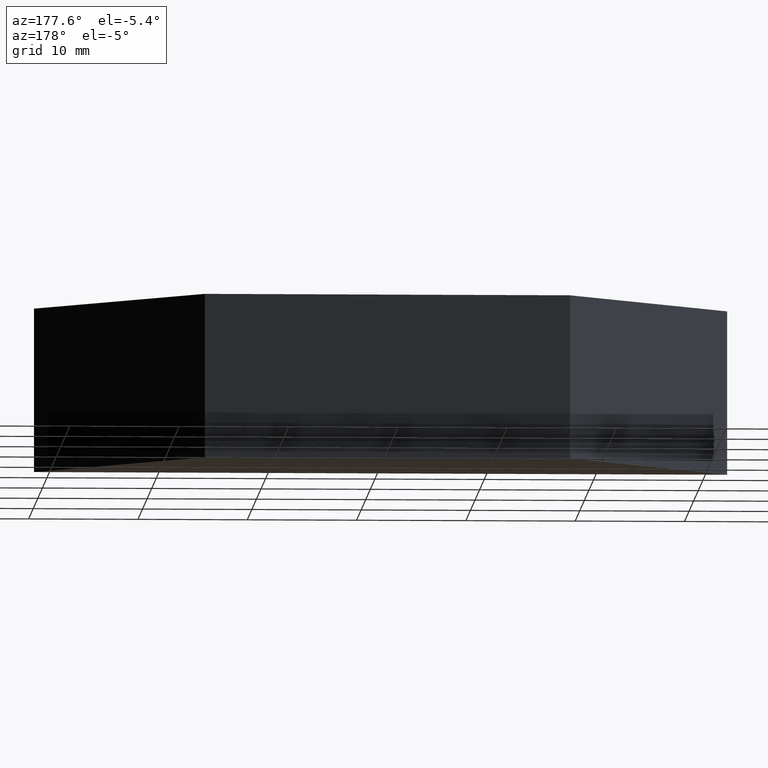
[diagram: clean part render]
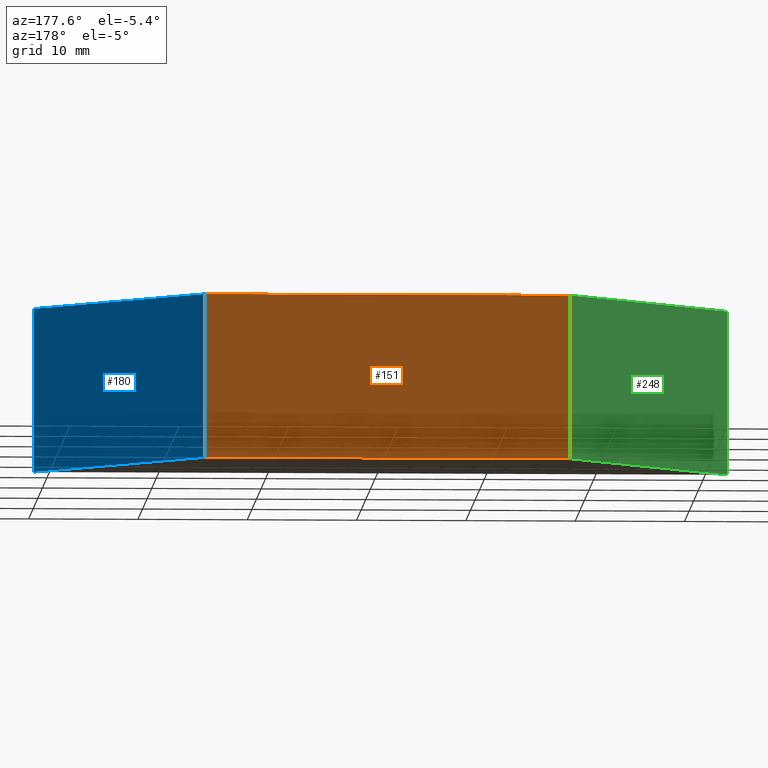
[diagram: same view with three faces highlighted in distinct colors, each labeled with its STEP entity id]
A machine part, auxiliary view with three faces highlighted in distinct colors.
Their STEP definitions:

[orange] entity #151 — the highlighted planar face has unit normal (0, -1, 0).
#8 = ORIENTED_EDGE ( 'NONE', *, *, #220, .F. ) ;
#33 = VERTEX_POINT ( 'NONE', #131 ) ;
#34 = EDGE_CURVE ( 'NONE', #162, #102, #93, .T. ) ;
#41 = DIRECTION ( 'NONE',  ( 0.0000000000000000000, -0.0000000000000000000, -1.000000000000000000 ) ) ;
#58 = CARTESIAN_POINT ( 'NONE',  ( 72.56530050263808100, 89.88315572825170800, 15.00000000000000000 ) ) ;
#62 = EDGE_LOOP ( 'NONE', ( #236, #8, #153, #289 ) ) ;
#74 = EDGE_CURVE ( 'NONE', #216, #162, #239, .T. ) ;
#88 = CARTESIAN_POINT ( 'NONE',  ( 72.56530050263808100, 89.88315572825170800, 15.00000000000000000 ) ) ;
#91 = EDGE_CURVE ( 'NONE', #216, #33, #198, .T. ) ;
#93 = LINE ( 'NONE', #156, #260 ) ;
#102 = VERTEX_POINT ( 'NONE', #305 ) ;
#110 = PLANE ( 'NONE',  #196 ) ;
#117 = DIRECTION ( 'NONE',  ( -0.0000000000000000000, -0.0000000000000000000, -1.000000000000000000 ) ) ;
#118 = DIRECTION ( 'NONE',  ( 0.0000000000000000000, -1.000000000000000000, 0.0000000000000000000 ) ) ;
#131 = CARTESIAN_POINT ( 'NONE',  ( 72.56530050263808100, 89.88315572825170800, 15.00000000000000000 ) ) ;
#151 = ADVANCED_FACE ( 'NONE', ( #157 ), #110, .F. ) ;
#153 = ORIENTED_EDGE ( 'NONE', *, *, #91, .F. ) ;
#156 = CARTESIAN_POINT ( 'NONE',  ( 72.56530050263808100, 89.88315572825170800, 0.0000000000000000000 ) ) ;
#157 = FACE_OUTER_BOUND ( 'NONE', #62, .T. ) ;
#158 = DIRECTION ( 'NONE',  ( -0.0000000000000000000, -0.0000000000000000000, -1.000000000000000000 ) ) ;
#159 = DIRECTION ( 'NONE',  ( -1.000000000000000000, -0.0000000000000000000, -0.0000000000000000000 ) ) ;
#162 = VERTEX_POINT ( 'NONE', #265 ) ;
#164 = CARTESIAN_POINT ( 'NONE',  ( 72.56530050263808100, 89.88315572825170800, 15.00000000000000000 ) ) ;
#187 = DIRECTION ( 'NONE',  ( -1.000000000000000000, -0.0000000000000000000, -0.0000000000000000000 ) ) ;
#196 = AXIS2_PLACEMENT_3D ( 'NONE', #164, #118, #41 ) ;
#198 = LINE ( 'NONE', #58, #283 ) ;
#216 = VERTEX_POINT ( 'NONE', #237 ) ;
#220 = EDGE_CURVE ( 'NONE', #33, #102, #243, .T. ) ;
#229 = VECTOR ( 'NONE', #158, 1000.000000000000000 ) ;
#236 = ORIENTED_EDGE ( 'NONE', *, *, #34, .T. ) ;
#237 = CARTESIAN_POINT ( 'NONE',  ( 105.9653007026379500, 89.88315572825170800, 15.00000000000000000 ) ) ;
#238 = VECTOR ( 'NONE', #117, 1000.000000000000000 ) ;
#239 = LINE ( 'NONE', #258, #229 ) ;
#243 = LINE ( 'NONE', #88, #238 ) ;
#258 = CARTESIAN_POINT ( 'NONE',  ( 105.9653007026379500, 89.88315572825170800, 15.00000000000000000 ) ) ;
#260 = VECTOR ( 'NONE', #187, 1000.000000000000000 ) ;
#265 = CARTESIAN_POINT ( 'NONE',  ( 105.9653007026379500, 89.88315572825170800, 0.0000000000000000000 ) ) ;
#283 = VECTOR ( 'NONE', #159, 1000.000000000000000 ) ;
#289 = ORIENTED_EDGE ( 'NONE', *, *, #74, .T. ) ;
#305 = CARTESIAN_POINT ( 'NONE',  ( 72.56530050263808100, 89.88315572825170800, 0.0000000000000000000 ) ) ;

[blue] entity #180 — the highlighted planar face has unit normal (-0.7071, -0.7071, 0).
#3 = LINE ( 'NONE', #79, #52 ) ;
#12 = EDGE_CURVE ( 'NONE', #212, #216, #3, .T. ) ;
#28 = DIRECTION ( 'NONE',  ( -0.7071067811865540100, 0.7071067811865410200, 0.0000000000000000000 ) ) ;
#46 = ORIENTED_EDGE ( 'NONE', *, *, #273, .T. ) ;
#52 = VECTOR ( 'NONE', #28, 1000.000000000000100 ) ;
#63 = CARTESIAN_POINT ( 'NONE',  ( 120.9653007026382200, 74.88315572825172200, 15.00000000000000000 ) ) ;
#65 = PLANE ( 'NONE',  #103 ) ;
#73 = ORIENTED_EDGE ( 'NONE', *, *, #74, .F. ) ;
#74 = EDGE_CURVE ( 'NONE', #216, #162, #239, .T. ) ;
#77 = EDGE_LOOP ( 'NONE', ( #46, #73, #225, #278 ) ) ;
#79 = CARTESIAN_POINT ( 'NONE',  ( 120.9653007026382200, 74.88315572825172200, 15.00000000000000000 ) ) ;
#103 = AXIS2_PLACEMENT_3D ( 'NONE', #138, #241, #190 ) ;
#122 = VECTOR ( 'NONE', #261, 1000.000000000000100 ) ;
#134 = DIRECTION ( 'NONE',  ( -0.0000000000000000000, -0.0000000000000000000, -1.000000000000000000 ) ) ;
#138 = CARTESIAN_POINT ( 'NONE',  ( 120.9653007026382200, 74.88315572825172200, 15.00000000000000000 ) ) ;
#140 = CARTESIAN_POINT ( 'NONE',  ( 120.9653007026382200, 74.88315572825172200, 0.0000000000000000000 ) ) ;
#142 = VERTEX_POINT ( 'NONE', #234 ) ;
#158 = DIRECTION ( 'NONE',  ( -0.0000000000000000000, -0.0000000000000000000, -1.000000000000000000 ) ) ;
#162 = VERTEX_POINT ( 'NONE', #265 ) ;
#180 = ADVANCED_FACE ( 'NONE', ( #293 ), #65, .F. ) ;
#188 = LINE ( 'NONE', #140, #122 ) ;
#190 = DIRECTION ( 'NONE',  ( 0.7071067811865540100, -0.7071067811865410200, 0.0000000000000000000 ) ) ;
#201 = VECTOR ( 'NONE', #134, 1000.000000000000000 ) ;
#212 = VERTEX_POINT ( 'NONE', #304 ) ;
#216 = VERTEX_POINT ( 'NONE', #237 ) ;
#225 = ORIENTED_EDGE ( 'NONE', *, *, #12, .F. ) ;
#229 = VECTOR ( 'NONE', #158, 1000.000000000000000 ) ;
#234 = CARTESIAN_POINT ( 'NONE',  ( 120.9653007026382200, 74.88315572825172200, 0.0000000000000000000 ) ) ;
#237 = CARTESIAN_POINT ( 'NONE',  ( 105.9653007026379500, 89.88315572825170800, 15.00000000000000000 ) ) ;
#239 = LINE ( 'NONE', #258, #229 ) ;
#241 = DIRECTION ( 'NONE',  ( -0.7071067811865410200, -0.7071067811865540100, 0.0000000000000000000 ) ) ;
#244 = EDGE_CURVE ( 'NONE', #212, #142, #257, .T. ) ;
#257 = LINE ( 'NONE', #63, #201 ) ;
#258 = CARTESIAN_POINT ( 'NONE',  ( 105.9653007026379500, 89.88315572825170800, 15.00000000000000000 ) ) ;
#261 = DIRECTION ( 'NONE',  ( -0.7071067811865540100, 0.7071067811865410200, 0.0000000000000000000 ) ) ;
#265 = CARTESIAN_POINT ( 'NONE',  ( 105.9653007026379500, 89.88315572825170800, 0.0000000000000000000 ) ) ;
#273 = EDGE_CURVE ( 'NONE', #142, #162, #188, .T. ) ;
#278 = ORIENTED_EDGE ( 'NONE', *, *, #244, .T. ) ;
#293 = FACE_OUTER_BOUND ( 'NONE', #77, .T. ) ;
#304 = CARTESIAN_POINT ( 'NONE',  ( 120.9653007026382200, 74.88315572825172200, 15.00000000000000000 ) ) ;

[green] entity #248 — the highlighted planar face has unit normal (0.7071, -0.7071, 0).
#23 = AXIS2_PLACEMENT_3D ( 'NONE', #163, #262, #115 ) ;
#27 = EDGE_LOOP ( 'NONE', ( #254, #105, #246, #189 ) ) ;
#33 = VERTEX_POINT ( 'NONE', #131 ) ;
#35 = DIRECTION ( 'NONE',  ( -0.7071067811865474600, -0.7071067811865474600, -0.0000000000000000000 ) ) ;
#59 = CARTESIAN_POINT ( 'NONE',  ( 57.56530050263808100, 74.88315572825172200, 15.00000000000000000 ) ) ;
#88 = CARTESIAN_POINT ( 'NONE',  ( 72.56530050263808100, 89.88315572825170800, 15.00000000000000000 ) ) ;
#102 = VERTEX_POINT ( 'NONE', #305 ) ;
#105 = ORIENTED_EDGE ( 'NONE', *, *, #240, .F. ) ;
#106 = CARTESIAN_POINT ( 'NONE',  ( 57.56530050263808100, 74.88315572825172200, 0.0000000000000000000 ) ) ;
#109 = LINE ( 'NONE', #285, #302 ) ;
#115 = DIRECTION ( 'NONE',  ( 0.7071067811865474600, 0.7071067811865474600, 0.0000000000000000000 ) ) ;
#117 = DIRECTION ( 'NONE',  ( -0.0000000000000000000, -0.0000000000000000000, -1.000000000000000000 ) ) ;
#131 = CARTESIAN_POINT ( 'NONE',  ( 72.56530050263808100, 89.88315572825170800, 15.00000000000000000 ) ) ;
#136 = VERTEX_POINT ( 'NONE', #106 ) ;
#143 = CARTESIAN_POINT ( 'NONE',  ( 57.56530050263808100, 74.88315572825172200, 15.00000000000000000 ) ) ;
#150 = EDGE_CURVE ( 'NONE', #33, #275, #295, .T. ) ;
#163 = CARTESIAN_POINT ( 'NONE',  ( 57.56530050263808100, 74.88315572825172200, 15.00000000000000000 ) ) ;
#189 = ORIENTED_EDGE ( 'NONE', *, *, #220, .T. ) ;
#191 = DIRECTION ( 'NONE',  ( -0.7071067811865474600, -0.7071067811865474600, -0.0000000000000000000 ) ) ;
#217 = CARTESIAN_POINT ( 'NONE',  ( 57.56530050263808100, 74.88315572825172200, 15.00000000000000000 ) ) ;
#220 = EDGE_CURVE ( 'NONE', #33, #102, #243, .T. ) ;
#224 = FACE_OUTER_BOUND ( 'NONE', #27, .T. ) ;
#227 = VECTOR ( 'NONE', #191, 1000.000000000000100 ) ;
#238 = VECTOR ( 'NONE', #117, 1000.000000000000000 ) ;
#240 = EDGE_CURVE ( 'NONE', #275, #136, #282, .T. ) ;
#243 = LINE ( 'NONE', #88, #238 ) ;
#245 = VECTOR ( 'NONE', #284, 1000.000000000000000 ) ;
#246 = ORIENTED_EDGE ( 'NONE', *, *, #150, .F. ) ;
#248 = ADVANCED_FACE ( 'NONE', ( #224 ), #301, .F. ) ;
#254 = ORIENTED_EDGE ( 'NONE', *, *, #255, .T. ) ;
#255 = EDGE_CURVE ( 'NONE', #102, #136, #109, .T. ) ;
#262 = DIRECTION ( 'NONE',  ( 0.7071067811865475700, -0.7071067811865475700, 0.0000000000000000000 ) ) ;
#275 = VERTEX_POINT ( 'NONE', #59 ) ;
#282 = LINE ( 'NONE', #217, #245 ) ;
#284 = DIRECTION ( 'NONE',  ( -0.0000000000000000000, -0.0000000000000000000, -1.000000000000000000 ) ) ;
#285 = CARTESIAN_POINT ( 'NONE',  ( 57.56530050263808100, 74.88315572825172200, 0.0000000000000000000 ) ) ;
#295 = LINE ( 'NONE', #143, #227 ) ;
#301 = PLANE ( 'NONE',  #23 ) ;
#302 = VECTOR ( 'NONE', #35, 1000.000000000000100 ) ;
#305 = CARTESIAN_POINT ( 'NONE',  ( 72.56530050263808100, 89.88315572825170800, 0.0000000000000000000 ) ) ;